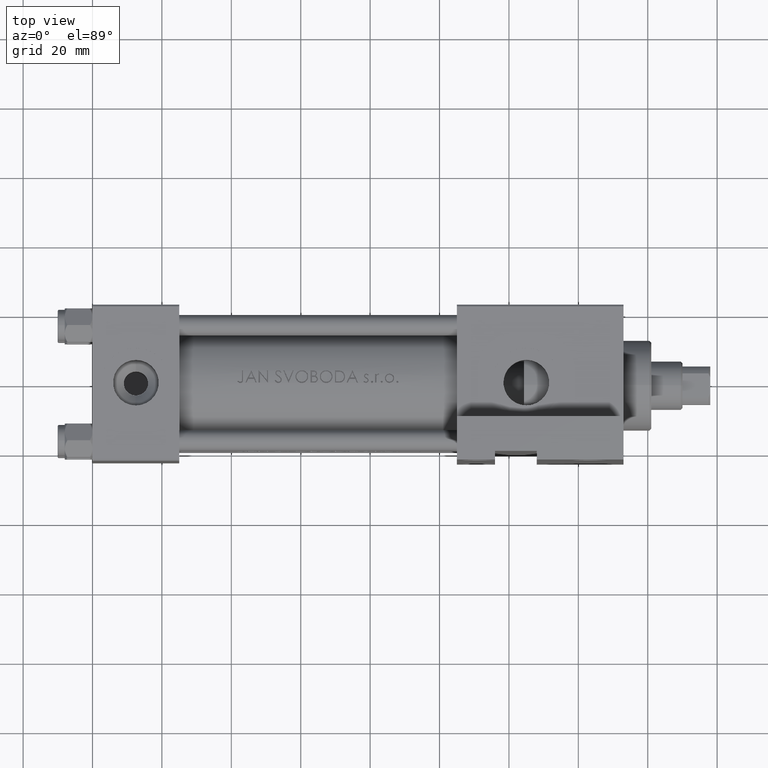
[diagram: clean part render]
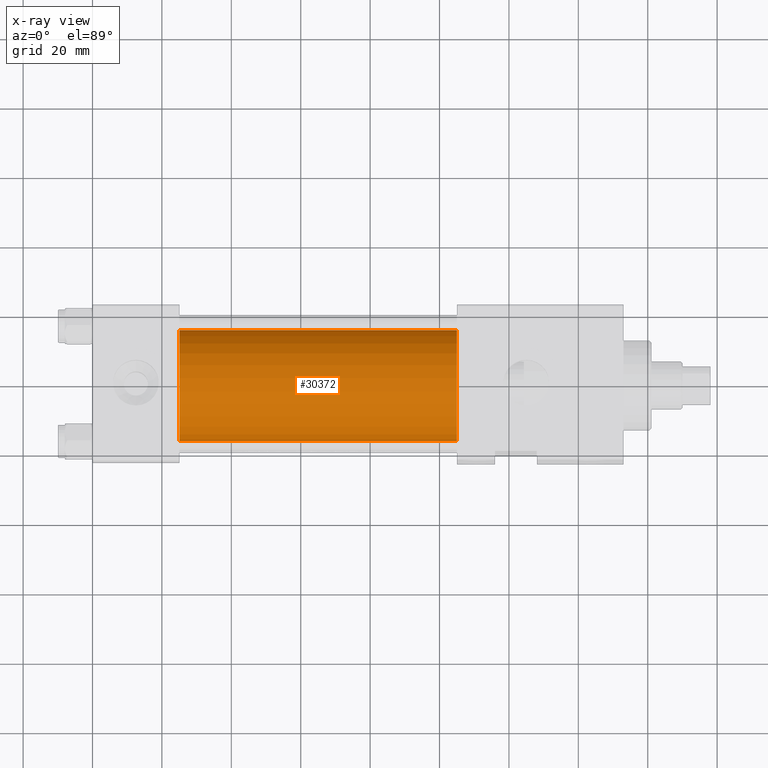
[diagram: x-ray — body ghosted, one internal face saturated and labeled with its STEP entity id]
A machine part, top view, then the same camera in x-ray: the body is ghosted and one INTERNAL B-rep face — a face not visible from any outside direction — is saturated and labeled: STEP entity #30372.
In plain terms, the highlighted cylindrical surface (partial cylindrical patch) has radius 16 mm, axis along (-1, -0, 0).
Its self-contained STEP definition (entity closure, byte-faithful):
#1045 = LINE ( 'NONE', #5053, #5628 ) ;
#2114 = CARTESIAN_POINT ( 'NONE',  ( 105.0000000000000142, 6.123233995736727825E-17, 15.50000000000000355 ) ) ;
#2409 = DIRECTION ( 'NONE',  ( 0.000000000000000000, 0.000000000000000000, -1.000000000000000000 ) ) ;
#2515 = ORIENTED_EDGE ( 'NONE', *, *, #41840, .T. ) ;
#2903 = CARTESIAN_POINT ( 'NONE',  ( 25.00000000000000000, 6.123233995736727825E-17, -0.4999999999999970024 ) ) ;
#3022 = EDGE_CURVE ( 'NONE', #25102, #35220, #44540, .T. ) ;
#5053 = CARTESIAN_POINT ( 'NONE',  ( 105.0000000000000142, 6.123233995736727825E-17, 15.50000000000000355 ) ) ;
#5628 = VECTOR ( 'NONE', #19891, 1000.000000000000000 ) ;
#7222 = CYLINDRICAL_SURFACE ( 'NONE', #20090, 16.00000000000000000 ) ;
#11190 = LINE ( 'NONE', #18973, #30797 ) ;
#14500 = ORIENTED_EDGE ( 'NONE', *, *, #29018, .F. ) ;
#15265 = CARTESIAN_POINT ( 'NONE',  ( 105.0000000000000142, 6.123233995736727825E-17, -0.4999999999999970024 ) ) ;
#15549 = DIRECTION ( 'NONE',  ( 0.000000000000000000, 0.000000000000000000, -1.000000000000000000 ) ) ;
#15712 = DIRECTION ( 'NONE',  ( -1.000000000000000000, -0.000000000000000000, -0.000000000000000000 ) ) ;
#15871 = EDGE_LOOP ( 'NONE', ( #45997, #2515, #32109, #14500 ) ) ;
#15919 = EDGE_CURVE ( 'NONE', #29267, #21183, #36839, .T. ) ;
#18973 = CARTESIAN_POINT ( 'NONE',  ( 105.0000000000000142, 2.020667218593132311E-15, -16.49999999999999645 ) ) ;
#19891 = DIRECTION ( 'NONE',  ( -1.000000000000000000, -0.000000000000000000, -0.000000000000000000 ) ) ;
#20090 = AXIS2_PLACEMENT_3D ( 'NONE', #15265, #26558, #37663 ) ;
#21183 = VERTEX_POINT ( 'NONE', #38821 ) ;
#22818 = FACE_OUTER_BOUND ( 'NONE', #15871, .T. ) ;
#22843 = AXIS2_PLACEMENT_3D ( 'NONE', #45986, #41965, #15549 ) ;
#24791 = AXIS2_PLACEMENT_3D ( 'NONE', #2903, #33573, #2409 ) ;
#25102 = VERTEX_POINT ( 'NONE', #2114 ) ;
#26558 = DIRECTION ( 'NONE',  ( -1.000000000000000000, -0.000000000000000000, -0.000000000000000000 ) ) ;
#29018 = EDGE_CURVE ( 'NONE', #25102, #29267, #1045, .T. ) ;
#29267 = VERTEX_POINT ( 'NONE', #32374 ) ;
#30372 = ADVANCED_FACE ( 'NONE', ( #22818 ), #7222, .F. ) ;
#30797 = VECTOR ( 'NONE', #15712, 1000.000000000000000 ) ;
#32109 = ORIENTED_EDGE ( 'NONE', *, *, #15919, .F. ) ;
#32374 = CARTESIAN_POINT ( 'NONE',  ( 25.00000000000000000, 6.123233995736727825E-17, 15.50000000000000355 ) ) ;
#33573 = DIRECTION ( 'NONE',  ( 1.000000000000000000, 0.000000000000000000, 0.000000000000000000 ) ) ;
#35220 = VERTEX_POINT ( 'NONE', #39977 ) ;
#36839 = CIRCLE ( 'NONE', #24791, 16.00000000000000000 ) ;
#37663 = DIRECTION ( 'NONE',  ( 0.000000000000000000, 0.000000000000000000, 1.000000000000000000 ) ) ;
#38821 = CARTESIAN_POINT ( 'NONE',  ( 25.00000000000000000, 2.020667218593132311E-15, -16.49999999999999645 ) ) ;
#39977 = CARTESIAN_POINT ( 'NONE',  ( 105.0000000000000142, 2.020667218593132311E-15, -16.49999999999999645 ) ) ;
#41840 = EDGE_CURVE ( 'NONE', #35220, #21183, #11190, .T. ) ;
#41965 = DIRECTION ( 'NONE',  ( 1.000000000000000000, 0.000000000000000000, 0.000000000000000000 ) ) ;
#44540 = CIRCLE ( 'NONE', #22843, 16.00000000000000000 ) ;
#45986 = CARTESIAN_POINT ( 'NONE',  ( 105.0000000000000142, 6.123233995736727825E-17, -0.4999999999999970024 ) ) ;
#45997 = ORIENTED_EDGE ( 'NONE', *, *, #3022, .T. ) ;